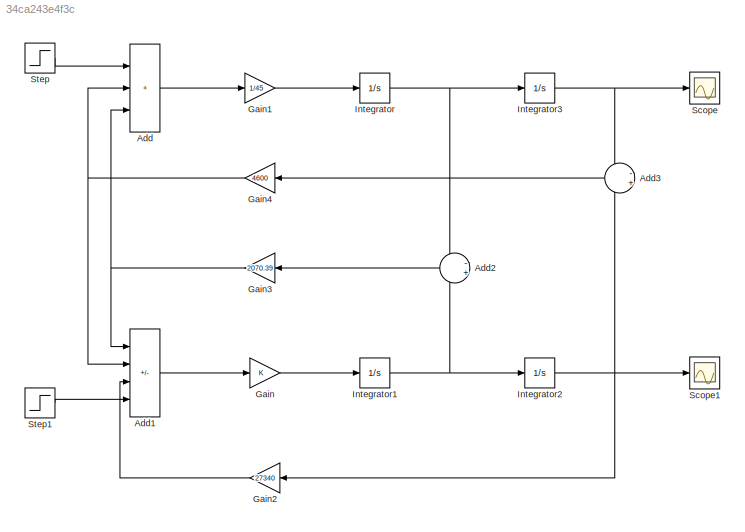
MODEL slx_34ca243e4f3c
KIND model
CONFIG AbsTol = auto
CONFIG EnableMultiTasking = off
CONFIG FixedStep = auto
CONFIG MaxStep = auto
CONFIG MinStep = auto
CONFIG RelTol = 1e-3
CONFIG SampleTimeConstraint = Unconstrained
CONFIG SolverName = VariableStepAuto
CONFIG StartTime = 0.0
CONFIG StopTime = 10.0
BLOCK [Sum] Add
  IconShape = rectangular
  Inputs = +++
  Ports = [3, 1]
BLOCK [Sum] Add1
  IconShape = rectangular
  Inputs = ---+
  Ports = [4, 1]
BLOCK [Sum] Add2
  Inputs = -+
  NameLocation = top
  Ports = [2, 1]
BLOCK [Sum] Add3
  Inputs = -+
  NameLocation = top
  Ports = [2, 1]
BLOCK [Gain] Gain
BLOCK [Gain] Gain1
  Gain = 1/45
BLOCK [Gain] Gain2
  Gain = 27340
  NameLocation = top
BLOCK [Gain] Gain3
  Gain = 2070.39
  NameLocation = top
BLOCK [Gain] Gain4
  Gain = 4600
  NameLocation = top
BLOCK [Integrator] Integrator
  Ports = [1, 1]
BLOCK [Integrator] Integrator1
  Ports = [1, 1]
BLOCK [Integrator] Integrator2
  Ports = [1, 1]
BLOCK [Integrator] Integrator3
  Ports = [1, 1]
BLOCK [Scope] Scope
  Floating = off
  NumInputPorts = 1
  Ports = [1]
  ScopeSpecificationString = Simulink.scopes.TimeScopeBlockCfg('CurrentConfiguration', extmgr.ConfigurationSet(extmgr.Configuration('Core','General UI',true),extmgr.Configuration('Core','Source UI',true),extmgr.Configuration('Sources','WiredSimulink',true),extmgr.Configuration('Visuals','Time Domain',true,'SerializedDisplays',{struct('MinYLimReal','-0.00333','MaxYLimReal','0.02993','YLabelReal','','MinYLimMag','0.00000','MaxY...<+1331ch>
BLOCK [Scope] Scope1
  Floating = off
  NumInputPorts = 1
  Ports = [1]
  ScopeSpecificationString = Simulink.scopes.TimeScopeBlockCfg('CurrentConfiguration', extmgr.ConfigurationSet(extmgr.Configuration('Core','General UI',true),extmgr.Configuration('Core','Source UI',true),extmgr.Configuration('Sources','WiredSimulink',true,'DataLoggingVariableName','ScopeData1'),extmgr.Configuration('Visuals','Time Domain',true,'SerializedDisplays',{struct('MinYLimReal','-0.0009','MaxYLimReal','0.00807','YLabe...<+1393ch>
BLOCK [Step] Step
  After = 100
  SampleTime = 0
BLOCK [Step] Step1
  After = 33
  SampleTime = 0
LINE Add1:1 -> Gain:1
LINE Add2:1 -> Gain3:1
LINE Add3:1 -> Gain4:1
LINE Add:1 -> Gain1:1
LINE Gain1:1 -> Integrator:1
LINE Gain2:1 -> Add1:3
NET Gain3:1 -> Add1:1, Add:3
NET Gain4:1 -> Add1:2, Add:2
LINE Gain:1 -> Integrator1:1
NET Integrator1:1 -> Add2:2, Integrator2:1
NET Integrator2:1 -> Add3:2, Gain2:1, Scope1:1
NET Integrator3:1 -> Add3:1, Scope:1
NET Integrator:1 -> Add2:1, Integrator3:1
LINE Step1:1 -> Add1:4
LINE Step:1 -> Add:1
note: NET lines group one-source signal fan-out (src -> all destinations, sorted); 1:1 wires keep LINE
